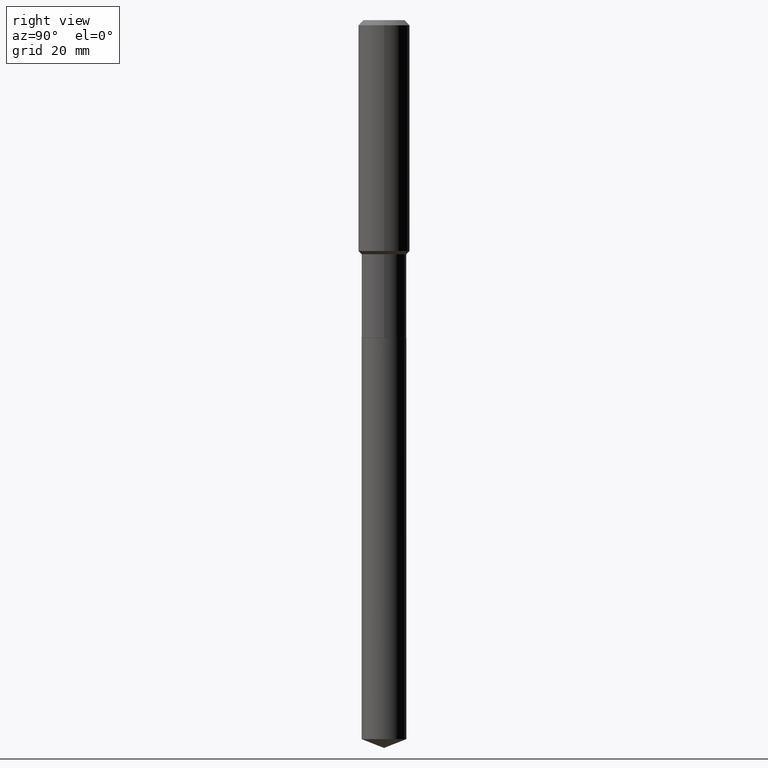
[diagram: clean part render]
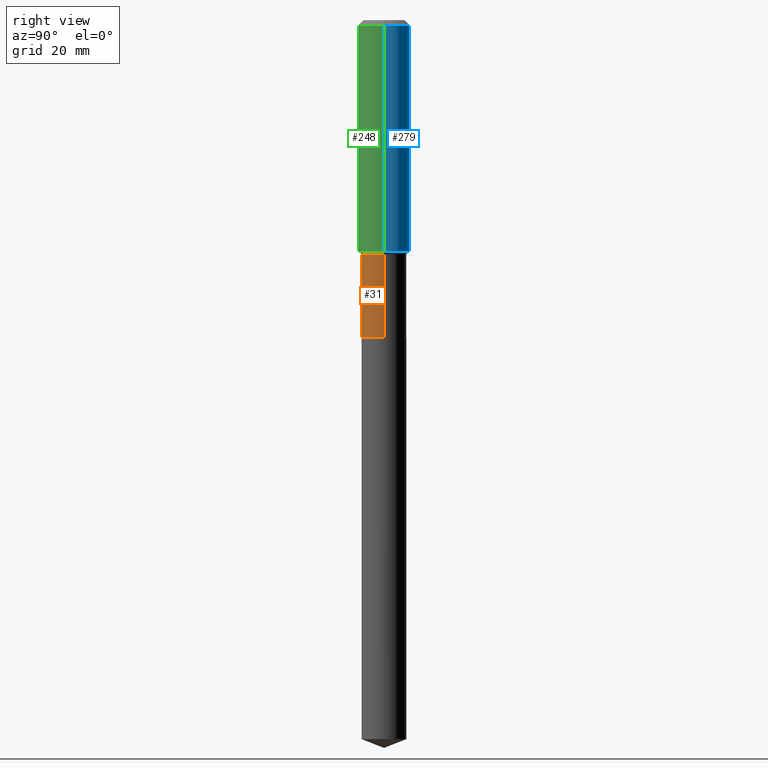
[diagram: same view with three faces highlighted in distinct colors, each labeled with its STEP entity id]
A machine part, right view with three faces highlighted in distinct colors.
Their STEP definitions:

[orange] entity #31 — the highlighted cylindrical surface (edge-blend (fillet) strip) has radius 4.3663 mm, axis along (-0, 0, 1).
#2 = FACE_OUTER_BOUND ( 'NONE', #469, .T. ) ;
#4 = CARTESIAN_POINT ( 'NONE',  ( 5.967922074614205116E-29, -8.520611059312809095E-15, -2.440399999999999014 ) ) ;
#17 = DIRECTION ( 'NONE',  ( -2.445468806185136877E-29, 3.491481338843145188E-15, 1.000000000000000000 ) ) ;
#20 = CIRCLE ( 'NONE', #154, 0.1718999999999999140 ) ;
#31 = ADVANCED_FACE ( 'NONE', ( #2 ), #452, .T. ) ;
#35 = AXIS2_PLACEMENT_3D ( 'NONE', #205, #125, #386 ) ;
#38 = EDGE_CURVE ( 'NONE', #162, #396, #47, .T. ) ;
#47 = LINE ( 'NONE', #385, #342 ) ;
#57 = DIRECTION ( 'NONE',  ( -2.445468806185136877E-29, 3.491481338843145188E-15, 1.000000000000000000 ) ) ;
#101 = ORIENTED_EDGE ( 'NONE', *, *, #352, .F. ) ;
#104 = VECTOR ( 'NONE', #57, 39.37007874015748143 ) ;
#122 = EDGE_CURVE ( 'NONE', #437, #442, #286, .T. ) ;
#125 = DIRECTION ( 'NONE',  ( -2.445468806185136597E-29, 3.491481338843145583E-15, 1.000000000000000000 ) ) ;
#154 = AXIS2_PLACEMENT_3D ( 'NONE', #207, #426, #195 ) ;
#159 = ORIENTED_EDGE ( 'NONE', *, *, #38, .T. ) ;
#162 = VERTEX_POINT ( 'NONE', #432 ) ;
#171 = DIRECTION ( 'NONE',  ( -2.445468806185136597E-29, 3.491481338843145583E-15, 1.000000000000000000 ) ) ;
#191 = CARTESIAN_POINT ( 'NONE',  ( 0.1718999999999999140, -7.480498768471432304E-15, -1.798699999999999521 ) ) ;
#195 = DIRECTION ( 'NONE',  ( 1.000000000000000000, -6.982962677686264344E-15, 0.000000000000000000 ) ) ;
#198 = EDGE_CURVE ( 'NONE', #437, #162, #387, .T. ) ;
#205 = CARTESIAN_POINT ( 'NONE',  ( 0.000000000000000000, 0.000000000000000000, 0.000000000000000000 ) ) ;
#207 = CARTESIAN_POINT ( 'NONE',  ( 4.398664741685204254E-29, -6.280127484177163852E-15, -1.798699999999999521 ) ) ;
#237 = AXIS2_PLACEMENT_3D ( 'NONE', #4, #171, #450 ) ;
#286 = LINE ( 'NONE', #325, #104 ) ;
#325 = CARTESIAN_POINT ( 'NONE',  ( -0.1718999999999999417, 1.221422962771611806E-15, -8.455649420148180377E-30 ) ) ;
#328 = ORIENTED_EDGE ( 'NONE', *, *, #122, .F. ) ;
#342 = VECTOR ( 'NONE', #17, 39.37007874015748143 ) ;
#352 = EDGE_CURVE ( 'NONE', #442, #396, #20, .T. ) ;
#385 = CARTESIAN_POINT ( 'NONE',  ( 0.1718999999999999417, -1.200371284294268847E-15, 8.382147877593211677E-30 ) ) ;
#386 = DIRECTION ( 'NONE',  ( 1.000000000000000000, -6.982962677686266711E-15, 4.876176775795936353E-29 ) ) ;
#387 = CIRCLE ( 'NONE', #237, 0.1718999999999999417 ) ;
#396 = VERTEX_POINT ( 'NONE', #191 ) ;
#399 = CARTESIAN_POINT ( 'NONE',  ( -0.1718999999999999140, -6.178946308973374668E-15, -1.798699999999999521 ) ) ;
#426 = DIRECTION ( 'NONE',  ( -2.445468806185136597E-29, 3.491481338843145583E-15, 1.000000000000000000 ) ) ;
#432 = CARTESIAN_POINT ( 'NONE',  ( 0.1718999999999999417, -9.720982343607079126E-15, -2.440399999999999014 ) ) ;
#437 = VERTEX_POINT ( 'NONE', #484 ) ;
#442 = VERTEX_POINT ( 'NONE', #399 ) ;
#450 = DIRECTION ( 'NONE',  ( 1.000000000000000000, -6.982962677686269077E-15, 0.000000000000000000 ) ) ;
#452 = CYLINDRICAL_SURFACE ( 'NONE', #35, 0.1718999999999999417 ) ;
#469 = EDGE_LOOP ( 'NONE', ( #328, #479, #159, #101 ) ) ;
#479 = ORIENTED_EDGE ( 'NONE', *, *, #198, .T. ) ;
#484 = CARTESIAN_POINT ( 'NONE',  ( -0.1718999999999999417, -6.178946308973374668E-15, -2.440399999999999014 ) ) ;

[blue] entity #279 — the highlighted cylindrical surface (edge-blend (fillet) strip) has radius 5 mm, axis along (-0, 0, 1).
#10 = DIRECTION ( 'NONE',  ( -2.445468806185136597E-29, 3.491481338843145583E-15, 1.000000000000000000 ) ) ;
#24 = FACE_OUTER_BOUND ( 'NONE', #445, .T. ) ;
#25 = DIRECTION ( 'NONE',  ( 1.000000000000000000, -6.982962677686266711E-15, 4.876176775795935793E-29 ) ) ;
#53 = ORIENTED_EDGE ( 'NONE', *, *, #196, .F. ) ;
#81 = CARTESIAN_POINT ( 'NONE',  ( 0.1968500000000000250, -1.512055823412797189E-15, -0.03937000000000024508 ) ) ;
#88 = CARTESIAN_POINT ( 'NONE',  ( -0.1968500000000002192, -4.794311649429267908E-15, -1.773749999999999272 ) ) ;
#94 = LINE ( 'NONE', #454, #417 ) ;
#96 = EDGE_CURVE ( 'NONE', #137, #220, #94, .T. ) ;
#98 = CARTESIAN_POINT ( 'NONE',  ( 4.337650294970884222E-29, -6.193015024773027274E-15, -1.773749999999999272 ) ) ;
#111 = AXIS2_PLACEMENT_3D ( 'NONE', #424, #141, #25 ) ;
#137 = VERTEX_POINT ( 'NONE', #216 ) ;
#141 = DIRECTION ( 'NONE',  ( -2.445468806185136597E-29, 3.491481338843145583E-15, 1.000000000000000000 ) ) ;
#142 = ORIENTED_EDGE ( 'NONE', *, *, #263, .T. ) ;
#146 = VECTOR ( 'NONE', #381, 39.37007874015748143 ) ;
#155 = VERTEX_POINT ( 'NONE', #326 ) ;
#192 = ORIENTED_EDGE ( 'NONE', *, *, #96, .F. ) ;
#196 = EDGE_CURVE ( 'NONE', #220, #155, #402, .T. ) ;
#197 = LINE ( 'NONE', #487, #146 ) ;
#216 = CARTESIAN_POINT ( 'NONE',  ( 0.1968500000000002192, -7.567611227875569671E-15, -1.773749999999999272 ) ) ;
#220 = VERTEX_POINT ( 'NONE', #81 ) ;
#263 = EDGE_CURVE ( 'NONE', #137, #335, #410, .T. ) ;
#274 = AXIS2_PLACEMENT_3D ( 'NONE', #98, #334, #466 ) ;
#276 = CARTESIAN_POINT ( 'NONE',  ( 9.627810689950943645E-31, -1.374596203102555315E-16, -0.03937000000000024508 ) ) ;
#279 = ADVANCED_FACE ( 'NONE', ( #24 ), #327, .T. ) ;
#281 = DIRECTION ( 'NONE',  ( 1.000000000000000000, -6.982962677686265922E-15, 0.000000000000000000 ) ) ;
#326 = CARTESIAN_POINT ( 'NONE',  ( -0.1968500000000000250, -1.766533947197883048E-15, -0.03937000000000024508 ) ) ;
#327 = CYLINDRICAL_SURFACE ( 'NONE', #111, 0.1968500000000001082 ) ;
#334 = DIRECTION ( 'NONE',  ( -2.445468806185136597E-29, 3.491481338843145583E-15, 1.000000000000000000 ) ) ;
#335 = VERTEX_POINT ( 'NONE', #88 ) ;
#336 = ORIENTED_EDGE ( 'NONE', *, *, #425, .T. ) ;
#374 = AXIS2_PLACEMENT_3D ( 'NONE', #276, #10, #281 ) ;
#381 = DIRECTION ( 'NONE',  ( -2.445468806185136877E-29, 3.491481338843145188E-15, 1.000000000000000000 ) ) ;
#402 = CIRCLE ( 'NONE', #374, 0.1968500000000000250 ) ;
#410 = CIRCLE ( 'NONE', #274, 0.1968500000000002192 ) ;
#417 = VECTOR ( 'NONE', #420, 39.37007874015748143 ) ;
#420 = DIRECTION ( 'NONE',  ( -2.445468806185136877E-29, 3.491481338843145188E-15, 1.000000000000000000 ) ) ;
#424 = CARTESIAN_POINT ( 'NONE',  ( 0.000000000000000000, 0.000000000000000000, 0.000000000000000000 ) ) ;
#425 = EDGE_CURVE ( 'NONE', #335, #155, #197, .T. ) ;
#445 = EDGE_LOOP ( 'NONE', ( #142, #336, #53, #192 ) ) ;
#454 = CARTESIAN_POINT ( 'NONE',  ( 0.1968500000000001082, -1.374596203102542397E-15, 9.598753983154305062E-30 ) ) ;
#466 = DIRECTION ( 'NONE',  ( 1.000000000000000000, -6.982962677686265922E-15, 0.000000000000000000 ) ) ;
#487 = CARTESIAN_POINT ( 'NONE',  ( -0.1968500000000001082, 1.398703375343757985E-15, -9.682923725166787881E-30 ) ) ;

[green] entity #248 — the highlighted cylindrical surface (edge-blend (fillet) strip) has radius 5 mm, axis along (-0, 0, 1).
#1 = FACE_OUTER_BOUND ( 'NONE', #368, .T. ) ;
#33 = ORIENTED_EDGE ( 'NONE', *, *, #425, .F. ) ;
#62 = DIRECTION ( 'NONE',  ( 1.000000000000000000, -6.982962677686265922E-15, 0.000000000000000000 ) ) ;
#81 = CARTESIAN_POINT ( 'NONE',  ( 0.1968500000000000250, -1.512055823412797189E-15, -0.03937000000000024508 ) ) ;
#84 = DIRECTION ( 'NONE',  ( -2.445468806185136597E-29, 3.491481338843145583E-15, 1.000000000000000000 ) ) ;
#88 = CARTESIAN_POINT ( 'NONE',  ( -0.1968500000000002192, -4.794311649429267908E-15, -1.773749999999999272 ) ) ;
#94 = LINE ( 'NONE', #454, #417 ) ;
#96 = EDGE_CURVE ( 'NONE', #137, #220, #94, .T. ) ;
#100 = CARTESIAN_POINT ( 'NONE',  ( 9.627810689950943645E-31, -1.374596203102555315E-16, -0.03937000000000024508 ) ) ;
#107 = ORIENTED_EDGE ( 'NONE', *, *, #178, .F. ) ;
#112 = ORIENTED_EDGE ( 'NONE', *, *, #96, .T. ) ;
#117 = DIRECTION ( 'NONE',  ( -2.445468806185136597E-29, 3.491481338843145583E-15, 1.000000000000000000 ) ) ;
#137 = VERTEX_POINT ( 'NONE', #216 ) ;
#146 = VECTOR ( 'NONE', #381, 39.37007874015748143 ) ;
#152 = ORIENTED_EDGE ( 'NONE', *, *, #333, .T. ) ;
#155 = VERTEX_POINT ( 'NONE', #326 ) ;
#168 = DIRECTION ( 'NONE',  ( 1.000000000000000000, -6.982962677686265922E-15, 0.000000000000000000 ) ) ;
#175 = DIRECTION ( 'NONE',  ( 1.000000000000000000, -6.982962677686266711E-15, 4.876176775795935793E-29 ) ) ;
#178 = EDGE_CURVE ( 'NONE', #155, #220, #438, .T. ) ;
#197 = LINE ( 'NONE', #487, #146 ) ;
#216 = CARTESIAN_POINT ( 'NONE',  ( 0.1968500000000002192, -7.567611227875569671E-15, -1.773749999999999272 ) ) ;
#219 = DIRECTION ( 'NONE',  ( -2.445468806185136597E-29, 3.491481338843145583E-15, 1.000000000000000000 ) ) ;
#220 = VERTEX_POINT ( 'NONE', #81 ) ;
#245 = AXIS2_PLACEMENT_3D ( 'NONE', #384, #117, #175 ) ;
#248 = ADVANCED_FACE ( 'NONE', ( #1 ), #312, .T. ) ;
#275 = CIRCLE ( 'NONE', #362, 0.1968500000000002192 ) ;
#312 = CYLINDRICAL_SURFACE ( 'NONE', #245, 0.1968500000000001082 ) ;
#326 = CARTESIAN_POINT ( 'NONE',  ( -0.1968500000000000250, -1.766533947197883048E-15, -0.03937000000000024508 ) ) ;
#333 = EDGE_CURVE ( 'NONE', #335, #137, #275, .T. ) ;
#335 = VERTEX_POINT ( 'NONE', #88 ) ;
#347 = CARTESIAN_POINT ( 'NONE',  ( 4.337650294970884222E-29, -6.193015024773027274E-15, -1.773749999999999272 ) ) ;
#362 = AXIS2_PLACEMENT_3D ( 'NONE', #347, #84, #168 ) ;
#368 = EDGE_LOOP ( 'NONE', ( #33, #152, #112, #107 ) ) ;
#381 = DIRECTION ( 'NONE',  ( -2.445468806185136877E-29, 3.491481338843145188E-15, 1.000000000000000000 ) ) ;
#384 = CARTESIAN_POINT ( 'NONE',  ( 0.000000000000000000, 0.000000000000000000, 0.000000000000000000 ) ) ;
#417 = VECTOR ( 'NONE', #420, 39.37007874015748143 ) ;
#420 = DIRECTION ( 'NONE',  ( -2.445468806185136877E-29, 3.491481338843145188E-15, 1.000000000000000000 ) ) ;
#425 = EDGE_CURVE ( 'NONE', #335, #155, #197, .T. ) ;
#438 = CIRCLE ( 'NONE', #451, 0.1968500000000000250 ) ;
#451 = AXIS2_PLACEMENT_3D ( 'NONE', #100, #219, #62 ) ;
#454 = CARTESIAN_POINT ( 'NONE',  ( 0.1968500000000001082, -1.374596203102542397E-15, 9.598753983154305062E-30 ) ) ;
#487 = CARTESIAN_POINT ( 'NONE',  ( -0.1968500000000001082, 1.398703375343757985E-15, -9.682923725166787881E-30 ) ) ;